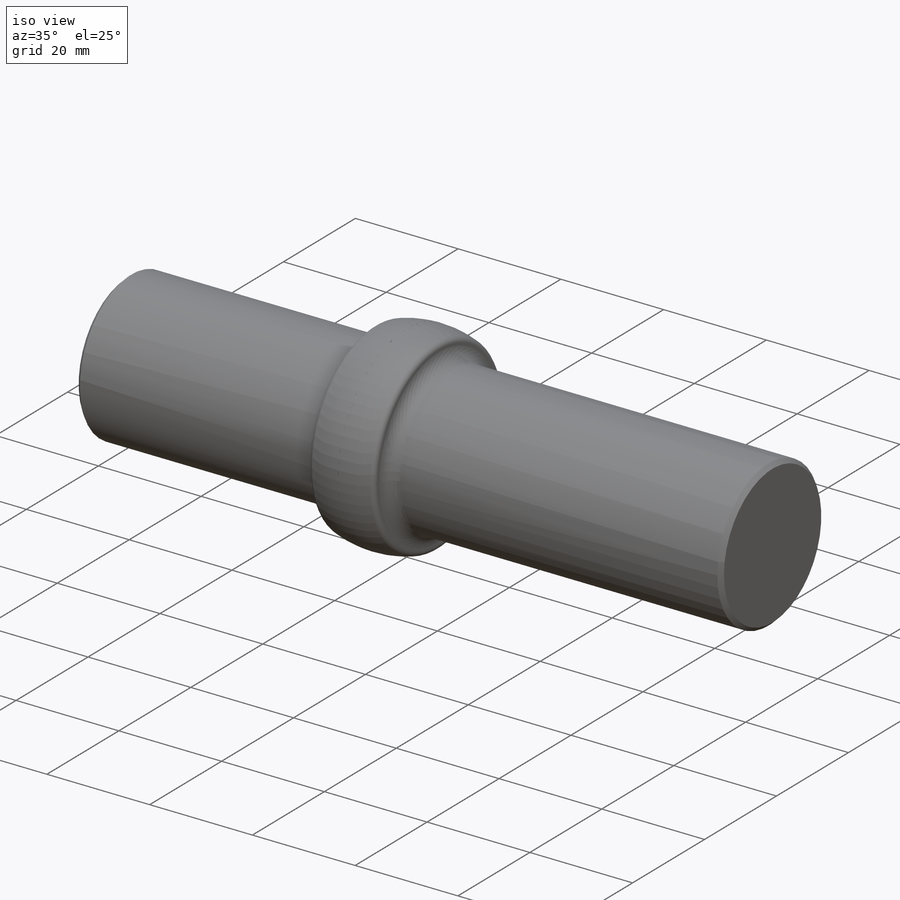
[diagram: iso view]
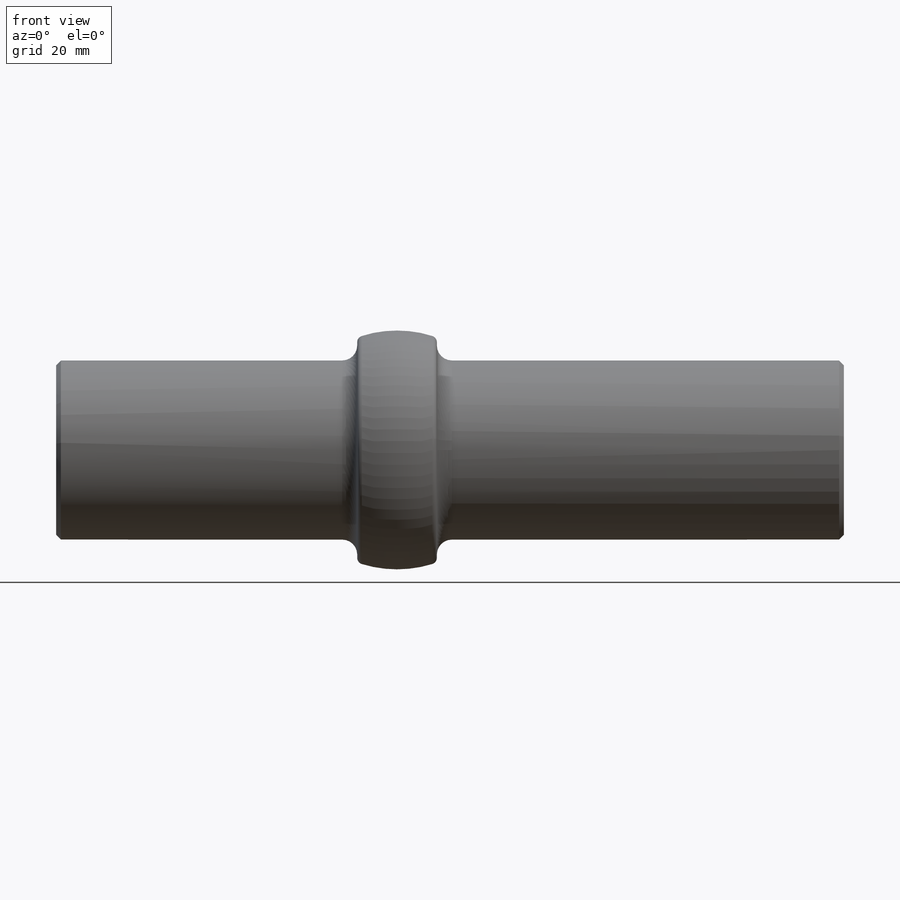
[diagram: front view]
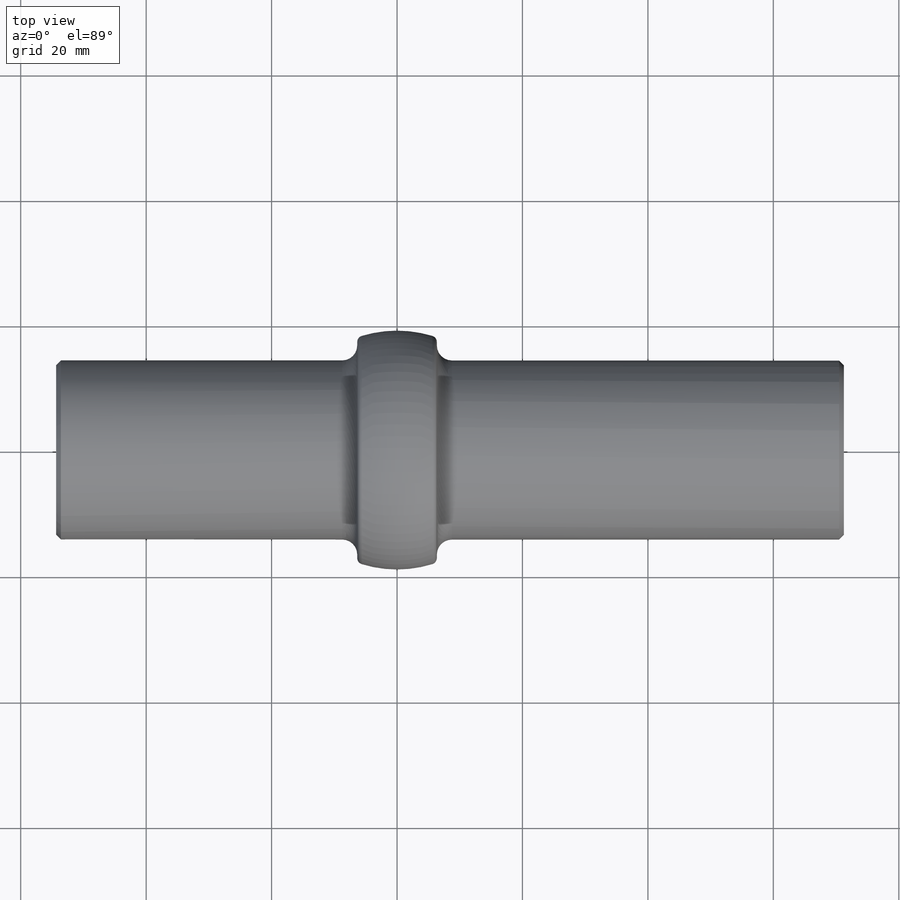
[diagram: top view]
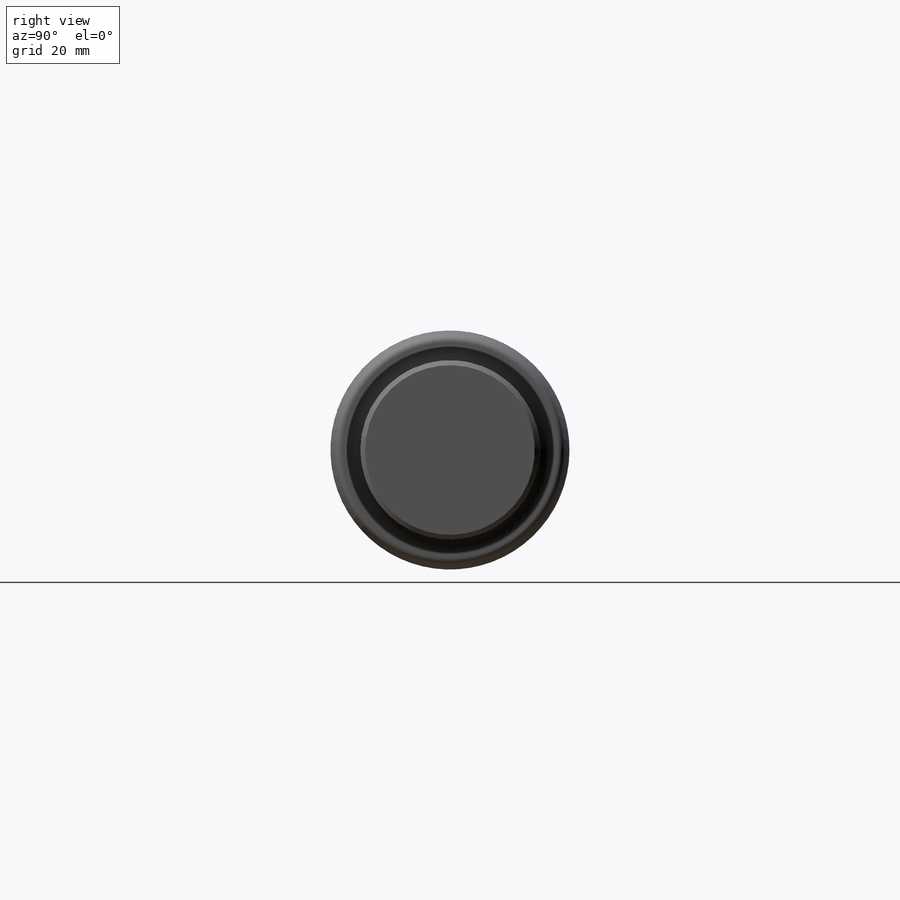
[diagram: right view]
SOLIDWORKS PART (.sldprt)
format: sldprt  version: not decoded by parser v0  size: 624,640 bytes
history: native  units: mm
features: plane x3, sketch x2, fillet x2, material x1, revolve x1, chamfer x1, cut_extrude x1 (+11 scaffold rows collapsed)
feature tree (22):
  scaffold x11  (default folders/planes/origin — collapsed)
  material  "AISI 440C PER AMS 5630"
  plane  "XY"
  plane  "XZ"
  plane  "YZ"
  sketch  "Sketch1"  dims[c1.D2=19.05mm c1.D3=19.05mm c1.D6=~13.832515mm c1.D5=3.175mm c1.D1=28.575mm c2.D3=38.1mm c2.D4=101.6mm c2.D5=12.7mm c2.D6=12.7mm c2.D7=12.7mm c3.D4=54.356mm c3.D8=71.247mm c3.D7=6.35mm c3.D9=6.35mm c3.D3=6.35mm c4.D7=12.7mm]
  revolve  "Revolve1"  Angle=360deg
  fillet  "Fillet1"  Radius=2.3876mm
  chamfer  "Chamfer1"  Distance=0.762mm Angle=45deg
  fillet  "Fillet2"  Radius=1.016mm
  sketch  "Sketch2"  dims[D1=1.016mm D2=4.7498mm]
  cut_extrude  "Cut-Extrude1"  Depth=0.0254mm
decode coverage: 7 of 7 modeling features carry decoded parameters
note: ~ marks probable driven/reference dimensions
note: suppression state not decoded; provenance and decode notes live in map.json
